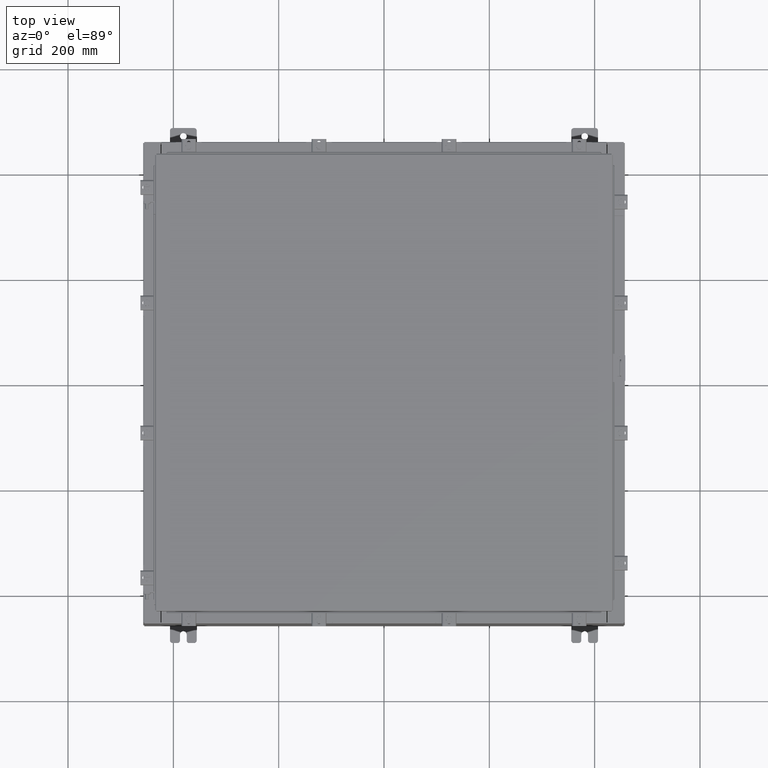
[diagram: clean part render]
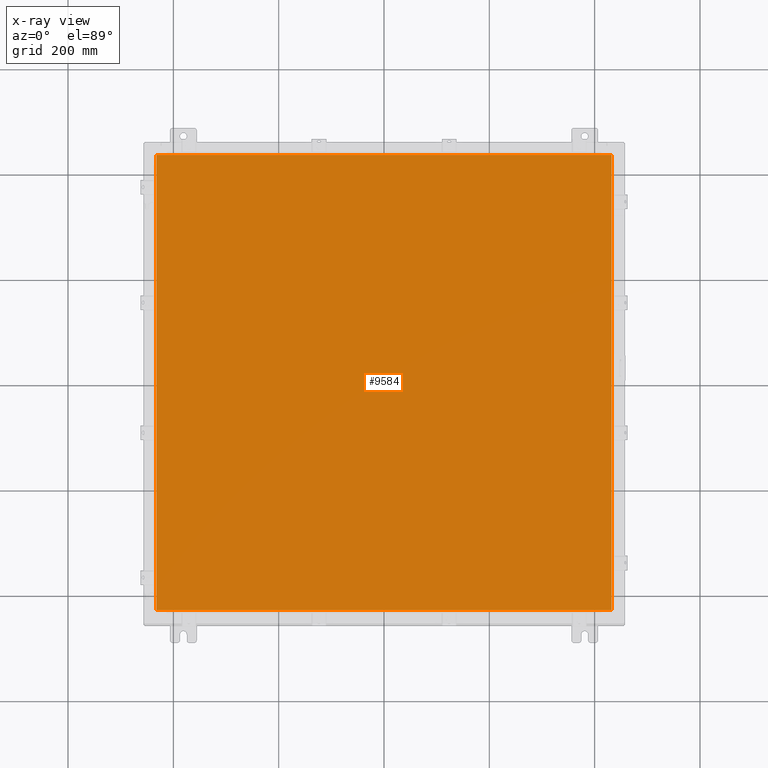
[diagram: x-ray — body ghosted, one internal face saturated and labeled with its STEP entity id]
A machine part, top view, then the same camera in x-ray: the body is ghosted and one INTERNAL B-rep face — a face not visible from any outside direction — is saturated and labeled: STEP entity #9584.
In plain terms, the highlighted planar face has unit normal (0, 0, -1).
Its self-contained STEP definition (entity closure, byte-faithful):
#261 = VERTEX_POINT ( 'NONE', #18498 ) ;
#1138 = CARTESIAN_POINT ( 'NONE',  ( 17.00630000000000000, 17.00630000000000000, -0.07470000000000015500 ) ) ;
#1330 = EDGE_CURVE ( 'NONE', #22789, #261, #15444, .T. ) ;
#1358 = ORIENTED_EDGE ( 'NONE', *, *, #1330, .F. ) ;
#1421 = PLANE ( 'NONE',  #14453 ) ;
#2616 = VERTEX_POINT ( 'NONE', #5271 ) ;
#2839 = LINE ( 'NONE', #21738, #7143 ) ;
#4981 = CARTESIAN_POINT ( 'NONE',  ( -17.00630000000000000, -17.00630000000000000, -0.07470000000000015500 ) ) ;
#5271 = CARTESIAN_POINT ( 'NONE',  ( 17.00630000000000000, -17.00630000000000000, -0.07470000000000015500 ) ) ;
#5435 = LINE ( 'NONE', #20067, #10408 ) ;
#5791 = ORIENTED_EDGE ( 'NONE', *, *, #21629, .F. ) ;
#7006 = DIRECTION ( 'NONE',  ( 0.0000000000000000000, 1.000000000000000000, 0.0000000000000000000 ) ) ;
#7143 = VECTOR ( 'NONE', #7006, 39.37007874015748100 ) ;
#7777 = DIRECTION ( 'NONE',  ( 0.0000000000000000000, 0.0000000000000000000, -1.000000000000000000 ) ) ;
#9584 = ADVANCED_FACE ( 'NONE', ( #11269 ), #1421, .T. ) ;
#10348 = VERTEX_POINT ( 'NONE', #1138 ) ;
#10408 = VECTOR ( 'NONE', #11666, 39.37007874015748100 ) ;
#11269 = FACE_OUTER_BOUND ( 'NONE', #15028, .T. ) ;
#11551 = ORIENTED_EDGE ( 'NONE', *, *, #24954, .F. ) ;
#11666 = DIRECTION ( 'NONE',  ( -1.000000000000000000, -0.0000000000000000000, -0.0000000000000000000 ) ) ;
#11909 = CARTESIAN_POINT ( 'NONE',  ( 0.0000000000000000000, 0.0000000000000000000, -0.07470000000000015500 ) ) ;
#12744 = LINE ( 'NONE', #4981, #23250 ) ;
#14236 = DIRECTION ( 'NONE',  ( 0.0000000000000000000, -1.000000000000000000, 0.0000000000000000000 ) ) ;
#14453 = AXIS2_PLACEMENT_3D ( 'NONE', #11909, #7777, #22479 ) ;
#15028 = EDGE_LOOP ( 'NONE', ( #23796, #11551, #1358, #5791 ) ) ;
#15400 = DIRECTION ( 'NONE',  ( 1.000000000000000000, -0.0000000000000000000, -0.0000000000000000000 ) ) ;
#15444 = LINE ( 'NONE', #26759, #25911 ) ;
#18498 = CARTESIAN_POINT ( 'NONE',  ( -17.00630000000000000, -17.00630000000000000, -0.07470000000000015500 ) ) ;
#20067 = CARTESIAN_POINT ( 'NONE',  ( 17.00630000000000000, 17.00630000000000000, -0.07470000000000015500 ) ) ;
#21629 = EDGE_CURVE ( 'NONE', #10348, #22789, #5435, .T. ) ;
#21738 = CARTESIAN_POINT ( 'NONE',  ( 17.00630000000000000, -17.00630000000000000, -0.07470000000000015500 ) ) ;
#22479 = DIRECTION ( 'NONE',  ( -1.000000000000000000, 0.0000000000000000000, -0.0000000000000000000 ) ) ;
#22789 = VERTEX_POINT ( 'NONE', #23463 ) ;
#23250 = VECTOR ( 'NONE', #15400, 39.37007874015748100 ) ;
#23463 = CARTESIAN_POINT ( 'NONE',  ( -17.00630000000000000, 17.00630000000000000, -0.07470000000000015500 ) ) ;
#23796 = ORIENTED_EDGE ( 'NONE', *, *, #24932, .F. ) ;
#24932 = EDGE_CURVE ( 'NONE', #2616, #10348, #2839, .T. ) ;
#24954 = EDGE_CURVE ( 'NONE', #261, #2616, #12744, .T. ) ;
#25911 = VECTOR ( 'NONE', #14236, 39.37007874015748100 ) ;
#26759 = CARTESIAN_POINT ( 'NONE',  ( -17.00630000000000000, 17.00630000000000000, -0.07470000000000015500 ) ) ;